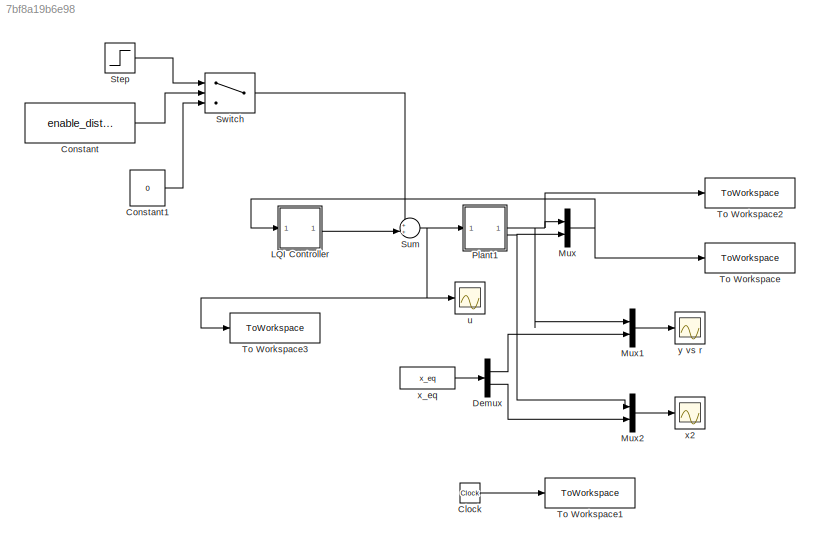
MODEL slx_7bf8a19b6e98
KIND model
CONFIG AbsTol = auto
CONFIG EnableMultiTasking = off
CONFIG FixedStep = auto
CONFIG MaxStep = auto
CONFIG MinStep = auto
CONFIG RelTol = 1e-10
CONFIG SampleTimeConstraint = Unconstrained
CONFIG SolverName = VariableStepAuto
CONFIG StartTime = 0.0
CONFIG StopTime = 50
BLOCK [Clock] Clock
BLOCK [Constant] Constant
  Value = enable_disturbances
BLOCK [Constant] Constant1
  Value = 0
BLOCK [Demux] Demux
  Outputs = 2
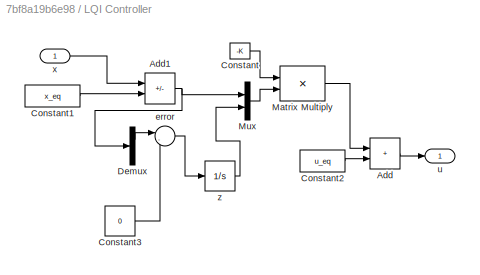
BLOCK [SubSystem] LQI Controller
BLOCK [Sum] LQI Controller/Add
  IconShape = rectangular
BLOCK [Sum] LQI Controller/Add1
  AccumDataTypeStr = Inherit: Same as first input
  IconShape = rectangular
  InputSameDT = on
  Inputs = +-
  LockScale = on
BLOCK [Constant] LQI Controller/Constant
  Value = -K
  VectorParams1D = off
BLOCK [Constant] LQI Controller/Constant1
  Value = x_eq
BLOCK [Constant] LQI Controller/Constant2
  Value = u_eq
BLOCK [Constant] LQI Controller/Constant3
  Value = 0
BLOCK [Demux] LQI Controller/Demux
  Outputs = 2
BLOCK [Product] LQI Controller/Matrix Multiply
  Multiplication = Matrix(*)
BLOCK [Mux] LQI Controller/Mux
  DisplayOption = bar
  Inputs = 2
BLOCK [Sum] LQI Controller/error
  Inputs = |-+
  NameLocation = top
BLOCK [Outport] LQI Controller/u
BLOCK [Inport] LQI Controller/x
BLOCK [Integrator] LQI Controller/z
  InitialCondition = 0.1
BLOCK [Mux] Mux
  DisplayOption = bar
  Inputs = 2
BLOCK [Mux] Mux1
  DisplayOption = bar
  Inputs = 2
BLOCK [Mux] Mux2
  DisplayOption = bar
  Inputs = 2
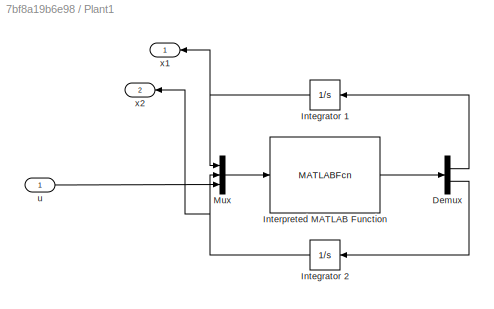
BLOCK [SubSystem] Plant1
BLOCK [Demux] Plant1/Demux
  Outputs = 2
BLOCK [Integrator] Plant1/Integrator 1
  InitialCondition = x1_0
  NameLocation = top
BLOCK [Integrator] Plant1/Integrator 2
  InitialCondition = x2_0
  NameLocation = top
BLOCK [MATLABFcn] Plant1/Interpreted MATLAB Function
  MATLABFcn = SYS
  OutputDimensions = 2
BLOCK [Mux] Plant1/Mux
  DisplayOption = bar
  Inputs = 3
BLOCK [Inport] Plant1/u
BLOCK [Outport] Plant1/x1
BLOCK [Outport] Plant1/x2
  Port = 2
BLOCK [Step] Step
  After = -50
  SampleTime = 0
  Time = 5
BLOCK [Sum] Sum
  Inputs = ++|
BLOCK [Switch] Switch
  Criteria = u2 > Threshold
  InputSameDT = off
  SaturateOnIntegerOverflow = off
BLOCK [ToWorkspace] To Workspace
  FixptAsFi = on
  MaxDataPoints = inf
  SampleTime = -1
  VariableName = x
BLOCK [ToWorkspace] To Workspace1
  FixptAsFi = on
  MaxDataPoints = inf
  SampleTime = -1
  SaveFormat = Timeseries
  VariableName = t
BLOCK [ToWorkspace] To Workspace2
  FixptAsFi = on
  MaxDataPoints = inf
  SampleTime = -1
  VariableName = y
BLOCK [ToWorkspace] To Workspace3
  FixptAsFi = on
  MaxDataPoints = inf
  SampleTime = -1
  VariableName = u
BLOCK [Scope] u
  Floating = off
  NumInputPorts = 1
  ScopeSpecificationString = Simulink.scopes.TimeScopeBlockCfg('CurrentConfiguration', extmgr.ConfigurationSet(extmgr.Configuration('Core','General UI',true),extmgr.Configuration('Core','Source UI',true),extmgr.Configuration('Sources','WiredSimulink',true,'DataLoggingVariableName','ScopeData1'),extmgr.Configuration('Visuals','Time Domain',true,'SerializedDisplays',{struct('MinYLimReal','-58.44986','MaxYLimReal','19.95133','YL...<+1543ch>
BLOCK [Scope] x2
  Floating = off
  NumInputPorts = 1
  ScopeSpecificationString = Simulink.scopes.TimeScopeBlockCfg('CurrentConfiguration', extmgr.ConfigurationSet(extmgr.Configuration('Core','General UI',true),extmgr.Configuration('Core','Source UI',true),extmgr.Configuration('Sources','WiredSimulink',true,'DataLoggingVariableName','ScopeData1'),extmgr.Configuration('Visuals','Time Domain',true,'SerializedDisplays',{struct('MinYLimReal','-0.05735','MaxYLimReal','0.51611','YLab...<+1782ch>
BLOCK [Constant] x_eq
  Value = x_eq
BLOCK [Scope] y vs r
  Floating = off
  NumInputPorts = 1
  ScopeSpecificationString = Simulink.scopes.TimeScopeBlockCfg('CurrentConfiguration', extmgr.ConfigurationSet(extmgr.Configuration('Core','General UI',true),extmgr.Configuration('Core','Source UI',true),extmgr.Configuration('Sources','WiredSimulink',true),extmgr.Configuration('Visuals','Time Domain',true,'SerializedDisplays',{struct('MinYLimReal','0.02216','MaxYLimReal','0.10993','YLabelReal','','MinYLimMag','0.02216','MaxYL...<+1622ch>
LINE Clock:1 -> To Workspace1:1
LINE Constant1:1 -> Switch:3
LINE Constant:1 -> Switch:2
LINE Demux:1 -> Mux1:2
LINE Demux:2 -> Mux2:2
NET LQI Controller/Add1:1 -> LQI Controller/Demux:1, LQI Controller/Mux:1
LINE LQI Controller/Add:1 -> LQI Controller/u:1
LINE LQI Controller/Constant1:1 -> LQI Controller/Add1:2
LINE LQI Controller/Constant2:1 -> LQI Controller/Add:2
LINE LQI Controller/Constant3:1 -> LQI Controller/error:2
LINE LQI Controller/Constant:1 -> LQI Controller/Matrix Multiply:1
LINE LQI Controller/Demux:1 -> LQI Controller/error:1
LINE LQI Controller/Matrix Multiply:1 -> LQI Controller/Add:1
LINE LQI Controller/Mux:1 -> LQI Controller/Matrix Multiply:2
LINE LQI Controller/error:1 -> LQI Controller/z:1
LINE LQI Controller/x:1 -> LQI Controller/Add1:1
LINE LQI Controller/z:1 -> LQI Controller/Mux:2
LINE LQI Controller:1 -> Sum:2
LINE Mux1:1 -> y vs r:1
LINE Mux2:1 -> x2:1
NET Mux:1 -> LQI Controller:1, To Workspace:1
LINE Plant1/Demux:1 -> Plant1/Integrator 1:1
LINE Plant1/Demux:2 -> Plant1/Integrator 2:1
NET Plant1/Integrator 1:1 -> Plant1/Mux:1, Plant1/x1:1
NET Plant1/Integrator 2:1 -> Plant1/Mux:2, Plant1/x2:1
LINE Plant1/Interpreted MATLAB Function:1 -> Plant1/Demux:1
LINE Plant1/Mux:1 -> Plant1/Interpreted MATLAB Function:1
LINE Plant1/u:1 -> Plant1/Mux:3
NET Plant1:1 -> Mux1:1, Mux:1, To Workspace2:1
NET Plant1:2 -> Mux2:1, Mux:2
LINE Step:1 -> Switch:1
NET Sum:1 -> Plant1:1, To Workspace3:1, u:1
LINE Switch:1 -> Sum:1
LINE x_eq:1 -> Demux:1
note: NET lines group one-source signal fan-out (src -> all destinations, sorted); 1:1 wires keep LINE
